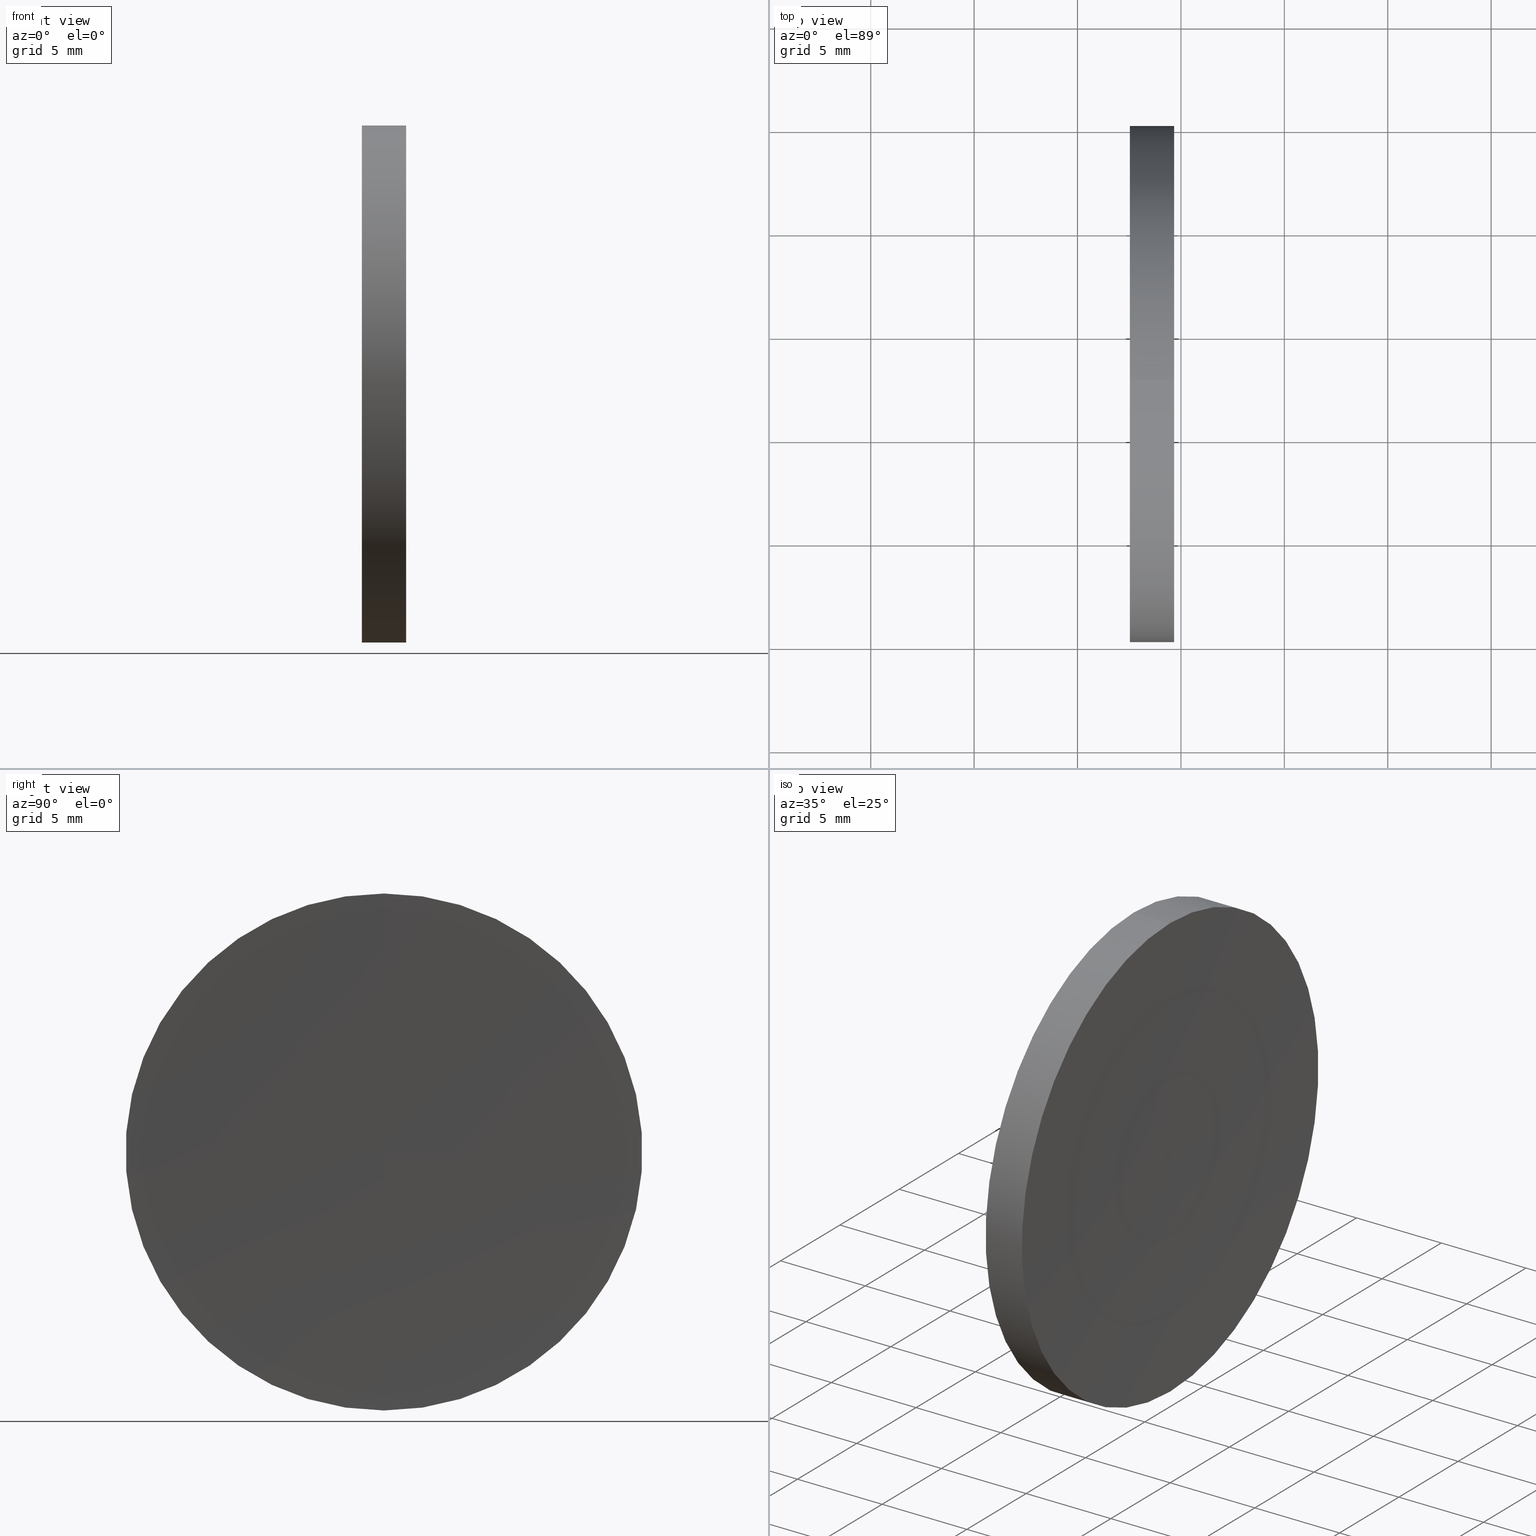
[diagram: canonical four-view strip — front | top / right | iso, engineering-drawing reading convention]
A machine part, canonical four-view strip (front | top / right | iso — engineering-drawing reading convention). The complete STEP part file that produces these views, byte-faithful:
ISO-10303-21;
HEADER;
FILE_DESCRIPTION (( 'STEP AP214' ),
    '1' );
FILE_NAME ('120042.STEP',
    '2019-06-17T06:10:08',
    ( '' ),
    ( '' ),
    'SwSTEP 2.0',
    'SolidWorks 2016',
    '' );
FILE_SCHEMA (( 'AUTOMOTIVE_DESIGN' ));
ENDSEC;

DATA;
#1 = VECTOR ( 'NONE', #66, 1000.000000000000000 ) ;
#2 = ADVANCED_FACE ( 'NONE', ( #61 ), #158, .T. ) ;
#3 = CARTESIAN_POINT ( 'NONE',  ( 56.10091507999716500, 32.61076812922678400, 0.0000000000000000000 ) ) ;
#4 = VERTEX_POINT ( 'NONE', #33 ) ;
#5 = DIRECTION ( 'NONE',  ( 0.0000000000000000000, 0.0000000000000000000, 1.000000000000000000 ) ) ;
#6 = AXIS2_PLACEMENT_3D ( 'NONE', #50, #152, #126 ) ;
#7 =( NAMED_UNIT ( * ) PLANE_ANGLE_UNIT ( ) SI_UNIT ( $, .RADIAN. ) );
#8 = DIRECTION ( 'NONE',  ( -1.000000000000000000, -0.0000000000000000000, -0.0000000000000000000 ) ) ;
#9 = EDGE_CURVE ( 'NONE', #166, #4, #53, .T. ) ;
#10 = CARTESIAN_POINT ( 'NONE',  ( 57.53233705252611700, 32.61076812922678400, 0.0000000000000000000 ) ) ;
#11 =( NAMED_UNIT ( * ) PLANE_ANGLE_UNIT ( ) SI_UNIT ( $, .RADIAN. ) );
#12 =( GEOMETRIC_REPRESENTATION_CONTEXT ( 3 ) GLOBAL_UNCERTAINTY_ASSIGNED_CONTEXT ( ( #143 ) ) GLOBAL_UNIT_ASSIGNED_CONTEXT ( ( #23, #111, #72 ) ) REPRESENTATION_CONTEXT ( 'NONE', 'WORKASPACE' ) );
#13 = DIRECTION ( 'NONE',  ( 0.0000000000000000000, -1.209100583449468600E-016, 1.000000000000000000 ) ) ;
#14 = SURFACE_STYLE_FILL_AREA ( #21 ) ;
#15 = PRODUCT_DEFINITION ( 'δ֪', '', #59, #154 ) ;
#16 = STYLED_ITEM ( 'NONE', ( #160 ), #30 ) ;
#17 = VERTEX_POINT ( 'NONE', #135 ) ;
#18 = DIRECTION ( 'NONE',  ( -1.000000000000000000, -0.0000000000000000000, -0.0000000000000000000 ) ) ;
#19 = TOROIDAL_SURFACE ( 'NONE', #47, 0.5881144325349321200, 516.5000000000000000 ) ;
#20 = EDGE_CURVE ( 'NONE', #166, #17, #38, .T. ) ;
#21 = FILL_AREA_STYLE ('',( #138 ) ) ;
#22 = ADVANCED_FACE ( 'NONE', ( #131 ), #96, .F. ) ;
#23 =( LENGTH_UNIT ( ) NAMED_UNIT ( * ) SI_UNIT ( .MILLI., .METRE. ) );
#24 = FACE_OUTER_BOUND ( 'NONE', #32, .T. ) ;
#25 = CARTESIAN_POINT ( 'NONE',  ( 57.53233705252611700, 32.61076812922678400, -12.49999999999999600 ) ) ;
#26 =( LENGTH_UNIT ( ) NAMED_UNIT ( * ) SI_UNIT ( .MILLI., .METRE. ) );
#27 = ORIENTED_EDGE ( 'NONE', *, *, #157, .T. ) ;
#28 = COLOUR_RGB ( '',1.000000000000000000, 1.000000000000000000, 1.000000000000000000 ) ;
#29 = AXIS2_PLACEMENT_3D ( 'NONE', #69, #112, #13 ) ;
#30 = MANIFOLD_SOLID_BREP ( '��ת1', #136 ) ;
#31 = DIRECTION ( 'NONE',  ( 0.0000000000000000000, -1.000000000000000000, 0.0000000000000000000 ) ) ;
#32 = EDGE_LOOP ( 'NONE', ( #57, #162, #91, #63 ) ) ;
#33 = CARTESIAN_POINT ( 'NONE',  ( 57.53233705252611700, 32.61076812922678400, 12.49999999999999600 ) ) ;
#34 = ORIENTED_EDGE ( 'NONE', *, *, #81, .T. ) ;
#35 = DIRECTION ( 'NONE',  ( 0.0000000000000000000, 0.0000000000000000000, -1.000000000000000000 ) ) ;
#36 = ADVANCED_FACE ( 'NONE', ( #24 ), #42, .T. ) ;
#37 = PLANE ( 'NONE',  #141 ) ;
#38 = CIRCLE ( 'NONE', #67, 516.5000000000000000 ) ;
#39 = UNCERTAINTY_MEASURE_WITH_UNIT (LENGTH_MEASURE( 1.000000000000000100E-005 ), #26, 'distance_accuracy_value', 'NONE');
#40 = AXIS2_PLACEMENT_3D ( 'NONE', #10, #124, #150 ) ;
#41 = ORIENTED_EDGE ( 'NONE', *, *, #79, .T. ) ;
#42 = CYLINDRICAL_SURFACE ( 'NONE', #103, 12.49999999999999600 ) ;
#43 = CARTESIAN_POINT ( 'NONE',  ( 56.10091507999716500, 32.61076812922678400, 0.0000000000000000000 ) ) ;
#44 = CARTESIAN_POINT ( 'NONE',  ( 576.0320022231961700, 32.61076812922678400, 0.0000000000000000000 ) ) ;
#45 = DIRECTION ( 'NONE',  ( -1.000000000000000000, -0.0000000000000000000, -0.0000000000000000000 ) ) ;
#46 = CARTESIAN_POINT ( 'NONE',  ( 56.10091507999716500, 32.61076812922678400, 12.49999999999999600 ) ) ;
#47 = AXIS2_PLACEMENT_3D ( 'NONE', #145, #73, #101 ) ;
#48 = CARTESIAN_POINT ( 'NONE',  ( 57.53233705252611700, 32.61076812922678400, 0.0000000000000000000 ) ) ;
#49 = APPLICATION_CONTEXT ( 'automotive_design' ) ;
#50 = CARTESIAN_POINT ( 'NONE',  ( 0.0000000000000000000, 0.0000000000000000000, 0.0000000000000000000 ) ) ;
#51 = DIRECTION ( 'NONE',  ( 0.0000000000000000000, 0.0000000000000000000, 1.000000000000000000 ) ) ;
#52 = VECTOR ( 'NONE', #163, 1000.000000000000000 ) ;
#53 = LINE ( 'NONE', #46, #1 ) ;
#54 = COLOUR_RGB ( '',1.000000000000000000, 1.000000000000000000, 1.000000000000000000 ) ;
#55 = CIRCLE ( 'NONE', #151, 12.49999999999999600 ) ;
#56 = SURFACE_SIDE_STYLE ('',( #105 ) ) ;
#57 = ORIENTED_EDGE ( 'NONE', *, *, #77, .T. ) ;
#58 = SURFACE_STYLE_USAGE ( .BOTH. , #56 ) ;
#59 = PRODUCT_DEFINITION_FORMATION_WITH_SPECIFIED_SOURCE ( '�κ�', '', #93, .NOT_KNOWN. ) ;
#60 = DIRECTION ( 'NONE',  ( -1.000000000000000000, -0.0000000000000000000, -0.0000000000000000000 ) ) ;
#61 = FACE_OUTER_BOUND ( 'NONE', #107, .T. ) ;
#62 = DIRECTION ( 'NONE',  ( 0.0000000000000000000, 0.0000000000000000000, 1.000000000000000000 ) ) ;
#63 = ORIENTED_EDGE ( 'NONE', *, *, #9, .F. ) ;
#64 = ORIENTED_EDGE ( 'NONE', *, *, #20, .T. ) ;
#65 = CIRCLE ( 'NONE', #40, 12.49999999999999600 ) ;
#66 = DIRECTION ( 'NONE',  ( -1.000000000000000000, -0.0000000000000000000, -0.0000000000000000000 ) ) ;
#67 = AXIS2_PLACEMENT_3D ( 'NONE', #120, #31, #132 ) ;
#68 = ORIENTED_EDGE ( 'NONE', *, *, #79, .F. ) ;
#69 = CARTESIAN_POINT ( 'NONE',  ( 576.0320022231961700, 32.61076812922678400, -0.5881144325349321200 ) ) ;
#70 = DIRECTION ( 'NONE',  ( -1.000000000000000000, -0.0000000000000000000, -0.0000000000000000000 ) ) ;
#71 = EDGE_LOOP ( 'NONE', ( #68, #90, #64 ) ) ;
#72 =( NAMED_UNIT ( * ) SI_UNIT ( $, .STERADIAN. ) SOLID_ANGLE_UNIT ( ) );
#73 = DIRECTION ( 'NONE',  ( -1.000000000000000000, -0.0000000000000000000, -0.0000000000000000000 ) ) ;
#74 = ORIENTED_EDGE ( 'NONE', *, *, #159, .T. ) ;
#75 = CARTESIAN_POINT ( 'NONE',  ( 59.66938062648569000, 32.61076812922678400, 0.0000000000000000000 ) ) ;
#76 = ORIENTED_EDGE ( 'NONE', *, *, #81, .F. ) ;
#77 = EDGE_CURVE ( 'NONE', #166, #128, #106, .T. ) ;
#78 = PRODUCT_DEFINITION_SHAPE ( 'NONE', 'NONE',  #15 ) ;
#79 = EDGE_CURVE ( 'NONE', #128, #17, #119, .T. ) ;
#80 = FILL_AREA_STYLE_COLOUR ( '', #28 ) ;
#81 = EDGE_CURVE ( 'NONE', #102, #4, #65, .T. ) ;
#82 = FACE_OUTER_BOUND ( 'NONE', #100, .T. ) ;
#83 = CARTESIAN_POINT ( 'NONE',  ( 59.66938062648566200, 32.61076812922678400, 12.49999999999684200 ) ) ;
#84 = ADVANCED_FACE ( 'NONE', ( #155 ), #19, .F. ) ;
#85 = CARTESIAN_POINT ( 'NONE',  ( 56.10091507999716500, 32.61076812922678400, -12.49999999999999600 ) ) ;
#86 = APPLICATION_PROTOCOL_DEFINITION ( 'draft international standard', 'automotive_design', 1998, #140 ) ;
#87 = PRESENTATION_LAYER_ASSIGNMENT (  '', '', ( #16 ) ) ;
#88 = CIRCLE ( 'NONE', #125, 12.49999999999999600 ) ;
#89 = AXIS2_PLACEMENT_3D ( 'NONE', #44, #8, #97 ) ;
#90 = ORIENTED_EDGE ( 'NONE', *, *, #77, .F. ) ;
#91 = ORIENTED_EDGE ( 'NONE', *, *, #157, .F. ) ;
#92 = EDGE_CURVE ( 'NONE', #128, #102, #117, .T. ) ;
#93 = PRODUCT ( '120042', '120042', '', ( #165 ) ) ;
#94 = ORIENTED_EDGE ( 'NONE', *, *, #9, .T. ) ;
#95 = MECHANICAL_DESIGN_GEOMETRIC_PRESENTATION_REPRESENTATION (  '', ( #16 ), #99 ) ;
#96 = TOROIDAL_SURFACE ( 'NONE', #89, 0.5881144325349321200, 516.5000000000000000 ) ;
#97 = DIRECTION ( 'NONE',  ( 0.0000000000000000000, 0.0000000000000000000, 1.000000000000000000 ) ) ;
#98 =( NAMED_UNIT ( * ) SI_UNIT ( $, .STERADIAN. ) SOLID_ANGLE_UNIT ( ) );
#99 =( GEOMETRIC_REPRESENTATION_CONTEXT ( 3 ) GLOBAL_UNCERTAINTY_ASSIGNED_CONTEXT ( ( #156 ) ) GLOBAL_UNIT_ASSIGNED_CONTEXT ( ( #123, #7, #98 ) ) REPRESENTATION_CONTEXT ( 'NONE', 'WORKASPACE' ) );
#100 = EDGE_LOOP ( 'NONE', ( #27, #34 ) ) ;
#101 = DIRECTION ( 'NONE',  ( 0.0000000000000000000, 0.0000000000000000000, 1.000000000000000000 ) ) ;
#102 = VERTEX_POINT ( 'NONE', #25 ) ;
#103 = AXIS2_PLACEMENT_3D ( 'NONE', #3, #45, #146 ) ;
#104 = STYLED_ITEM ( 'NONE', ( #142 ), #118 ) ;
#105 = SURFACE_STYLE_FILL_AREA ( #122 ) ;
#106 = CIRCLE ( 'NONE', #116, 12.49999999999999600 ) ;
#107 = EDGE_LOOP ( 'NONE', ( #129, #74, #94, #76 ) ) ;
#108 = SHAPE_DEFINITION_REPRESENTATION ( #78, #118 ) ;
#109 = AXIS2_PLACEMENT_3D ( 'NONE', #43, #18, #5 ) ;
#110 = DIRECTION ( 'NONE',  ( 0.0000000000000000000, 0.0000000000000000000, 1.000000000000000000 ) ) ;
#111 =( NAMED_UNIT ( * ) PLANE_ANGLE_UNIT ( ) SI_UNIT ( $, .RADIAN. ) );
#112 = DIRECTION ( 'NONE',  ( -0.0000000000000000000, 1.000000000000000000, 1.224646799147353200E-016 ) ) ;
#113 = CARTESIAN_POINT ( 'NONE',  ( 57.53233705252611700, 32.61076812922678400, 0.0000000000000000000 ) ) ;
#114 = PRESENTATION_LAYER_ASSIGNMENT (  '', '', ( #104 ) ) ;
#115 = ORIENTED_EDGE ( 'NONE', *, *, #159, .F. ) ;
#116 = AXIS2_PLACEMENT_3D ( 'NONE', #134, #70, #110 ) ;
#117 = LINE ( 'NONE', #85, #52 ) ;
#118 = ADVANCED_BREP_SHAPE_REPRESENTATION ( '120042', ( #30, #6 ), #12 ) ;
#119 = CIRCLE ( 'NONE', #29, 516.5000000000000000 ) ;
#120 = CARTESIAN_POINT ( 'NONE',  ( 576.0320022231961700, 32.61076812922678400, 0.5881144325349321200 ) ) ;
#121 = MECHANICAL_DESIGN_GEOMETRIC_PRESENTATION_REPRESENTATION (  '', ( #104 ), #130 ) ;
#122 = FILL_AREA_STYLE ('',( #80 ) ) ;
#123 =( LENGTH_UNIT ( ) NAMED_UNIT ( * ) SI_UNIT ( .MILLI., .METRE. ) );
#124 = DIRECTION ( 'NONE',  ( -1.000000000000000000, -0.0000000000000000000, -0.0000000000000000000 ) ) ;
#125 = AXIS2_PLACEMENT_3D ( 'NONE', #113, #60, #62 ) ;
#126 = DIRECTION ( 'NONE',  ( 1.000000000000000000, 0.0000000000000000000, 0.0000000000000000000 ) ) ;
#127 = DIRECTION ( 'NONE',  ( 1.000000000000000000, 0.0000000000000000000, 0.0000000000000000000 ) ) ;
#128 = VERTEX_POINT ( 'NONE', #149 ) ;
#129 = ORIENTED_EDGE ( 'NONE', *, *, #92, .F. ) ;
#130 =( GEOMETRIC_REPRESENTATION_CONTEXT ( 3 ) GLOBAL_UNCERTAINTY_ASSIGNED_CONTEXT ( ( #39 ) ) GLOBAL_UNIT_ASSIGNED_CONTEXT ( ( #26, #11, #164 ) ) REPRESENTATION_CONTEXT ( 'NONE', 'WORKASPACE' ) );
#131 = FACE_OUTER_BOUND ( 'NONE', #139, .T. ) ;
#132 = DIRECTION ( 'NONE',  ( 0.0000000000000000000, 0.0000000000000000000, -1.000000000000000000 ) ) ;
#133 = ORIENTED_EDGE ( 'NONE', *, *, #20, .F. ) ;
#134 = CARTESIAN_POINT ( 'NONE',  ( 59.66938062648569000, 32.61076812922678400, 0.0000000000000000000 ) ) ;
#135 = CARTESIAN_POINT ( 'NONE',  ( 59.53233705252625200, 32.61076812922678400, 0.0000000000000000000 ) ) ;
#136 = CLOSED_SHELL ( 'NONE', ( #36, #22, #84, #2, #148 ) ) ;
#137 = SURFACE_SIDE_STYLE ('',( #14 ) ) ;
#138 = FILL_AREA_STYLE_COLOUR ( '', #54 ) ;
#139 = EDGE_LOOP ( 'NONE', ( #115, #41, #133 ) ) ;
#140 = APPLICATION_CONTEXT ( 'automotive_design' ) ;
#141 = AXIS2_PLACEMENT_3D ( 'NONE', #48, #127, #35 ) ;
#142 = PRESENTATION_STYLE_ASSIGNMENT (( #153 ) ) ;
#143 = UNCERTAINTY_MEASURE_WITH_UNIT (LENGTH_MEASURE( 1.000000000000000100E-005 ), #23, 'distance_accuracy_value', 'NONE');
#144 = PRODUCT_RELATED_PRODUCT_CATEGORY ( 'part', '', ( #93 ) ) ;
#145 = CARTESIAN_POINT ( 'NONE',  ( 576.0320022231961700, 32.61076812922678400, 0.0000000000000000000 ) ) ;
#146 = DIRECTION ( 'NONE',  ( 0.0000000000000000000, 0.0000000000000000000, 1.000000000000000000 ) ) ;
#147 = DIRECTION ( 'NONE',  ( -1.000000000000000000, -0.0000000000000000000, -0.0000000000000000000 ) ) ;
#148 = ADVANCED_FACE ( 'NONE', ( #82 ), #37, .F. ) ;
#149 = CARTESIAN_POINT ( 'NONE',  ( 59.66938062648566200, 32.61076812922678400, -12.49999999999684200 ) ) ;
#150 = DIRECTION ( 'NONE',  ( 0.0000000000000000000, 0.0000000000000000000, 1.000000000000000000 ) ) ;
#151 = AXIS2_PLACEMENT_3D ( 'NONE', #75, #147, #51 ) ;
#152 = DIRECTION ( 'NONE',  ( 0.0000000000000000000, 0.0000000000000000000, 1.000000000000000000 ) ) ;
#153 = SURFACE_STYLE_USAGE ( .BOTH. , #137 ) ;
#154 = PRODUCT_DEFINITION_CONTEXT ( 'detailed design', #140, 'design' ) ;
#155 = FACE_OUTER_BOUND ( 'NONE', #71, .T. ) ;
#156 = UNCERTAINTY_MEASURE_WITH_UNIT (LENGTH_MEASURE( 1.000000000000000100E-005 ), #123, 'distance_accuracy_value', 'NONE');
#157 = EDGE_CURVE ( 'NONE', #4, #102, #88, .T. ) ;
#158 = CYLINDRICAL_SURFACE ( 'NONE', #109, 12.49999999999999600 ) ;
#159 = EDGE_CURVE ( 'NONE', #128, #166, #55, .T. ) ;
#160 = PRESENTATION_STYLE_ASSIGNMENT (( #58 ) ) ;
#161 = APPLICATION_PROTOCOL_DEFINITION ( 'draft international standard', 'automotive_design', 1998, #49 ) ;
#162 = ORIENTED_EDGE ( 'NONE', *, *, #92, .T. ) ;
#163 = DIRECTION ( 'NONE',  ( -1.000000000000000000, -0.0000000000000000000, -0.0000000000000000000 ) ) ;
#164 =( NAMED_UNIT ( * ) SI_UNIT ( $, .STERADIAN. ) SOLID_ANGLE_UNIT ( ) );
#165 = PRODUCT_CONTEXT ( 'NONE', #49, 'mechanical' ) ;
#166 = VERTEX_POINT ( 'NONE', #83 ) ;
ENDSEC;
END-ISO-10303-21;
